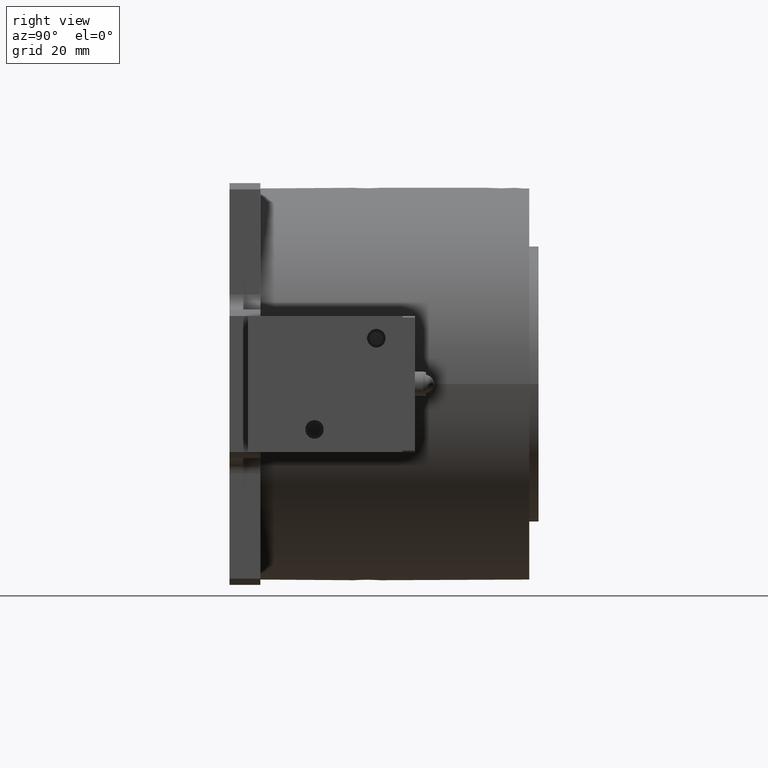
[diagram: clean part render]
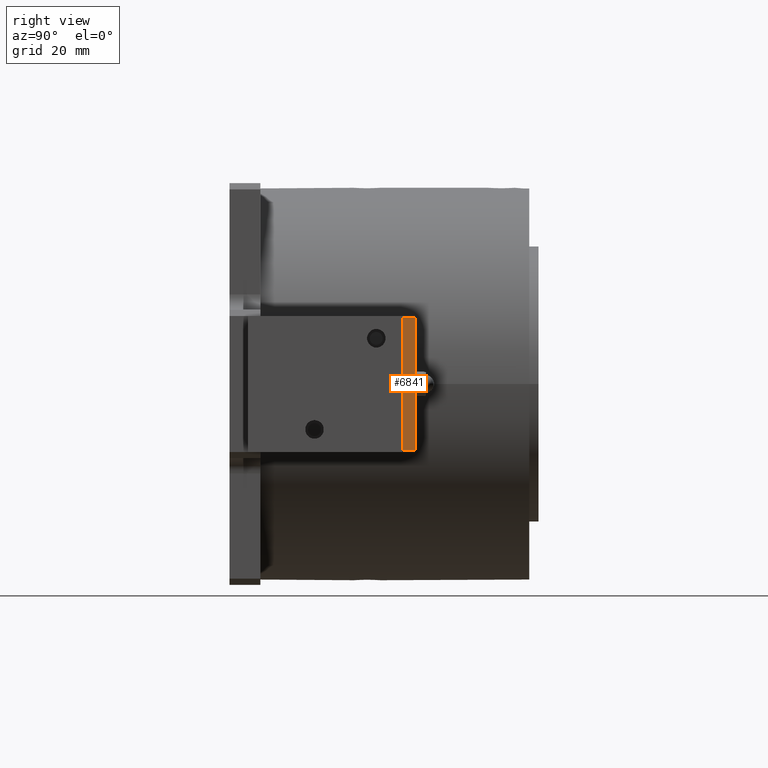
[diagram: same view with one face highlighted and labeled with its STEP entity id]
A machine part, right view. The second image highlights one B-rep face of the part: STEP entity #6841.
In plain terms, the highlighted planar face has unit normal (1, 0, 0).
Its self-contained STEP definition (entity closure, byte-faithful):
#6238=DIRECTION('',(1.E0,0.E0,0.E0));
#6239=VECTOR('',#6238,4.3E1);
#6240=CARTESIAN_POINT('',(-2.15E1,-1.25E1,-2.E0));
#6241=LINE('',#6240,#6239);
#6349=DIRECTION('',(0.E0,0.E0,-1.E0));
#6350=VECTOR('',#6349,4.E0);
#6351=CARTESIAN_POINT('',(-2.15E1,-1.25E1,2.E0));
#6352=LINE('',#6351,#6350);
#6356=DIRECTION('',(0.E0,0.E0,-1.E0));
#6357=VECTOR('',#6356,4.E0);
#6358=CARTESIAN_POINT('',(2.15E1,-1.25E1,2.E0));
#6359=LINE('',#6358,#6357);
#6412=DIRECTION('',(1.E0,0.E0,0.E0));
#6413=VECTOR('',#6412,4.3E1);
#6414=CARTESIAN_POINT('',(-2.15E1,-1.25E1,2.E0));
#6415=LINE('',#6414,#6413);
#6651=CARTESIAN_POINT('',(-2.15E1,-1.25E1,-2.E0));
#6653=VERTEX_POINT('',#6651);
#6657=CARTESIAN_POINT('',(-2.15E1,-1.25E1,2.E0));
#6658=VERTEX_POINT('',#6657);
#6668=CARTESIAN_POINT('',(2.15E1,-1.25E1,-2.E0));
#6670=VERTEX_POINT('',#6668);
#6671=CARTESIAN_POINT('',(2.15E1,-1.25E1,2.E0));
#6672=VERTEX_POINT('',#6671);
#6828=CARTESIAN_POINT('',(-2.2E1,-1.25E1,-2.E0));
#6829=DIRECTION('',(0.E0,-1.E0,0.E0));
#6830=DIRECTION('',(1.E0,0.E0,0.E0));
#6831=AXIS2_PLACEMENT_3D('',#6828,#6829,#6830);
#6832=PLANE('',#6831);
#6834=ORIENTED_EDGE('',*,*,#6833,.F.);
#6836=ORIENTED_EDGE('',*,*,#6835,.T.);
#6837=ORIENTED_EDGE('',*,*,#6820,.T.);
#6838=ORIENTED_EDGE('',*,*,#6726,.F.);
#6839=EDGE_LOOP('',(#6834,#6836,#6837,#6838));
#6840=FACE_OUTER_BOUND('',#6839,.F.);
#6726=EDGE_CURVE('',#6653,#6670,#6241,.T.);
#6820=EDGE_CURVE('',#6672,#6670,#6359,.T.);
#6833=EDGE_CURVE('',#6658,#6653,#6352,.T.);
#6835=EDGE_CURVE('',#6658,#6672,#6415,.T.);
#6841=ADVANCED_FACE('',(#6840),#6832,.T.);